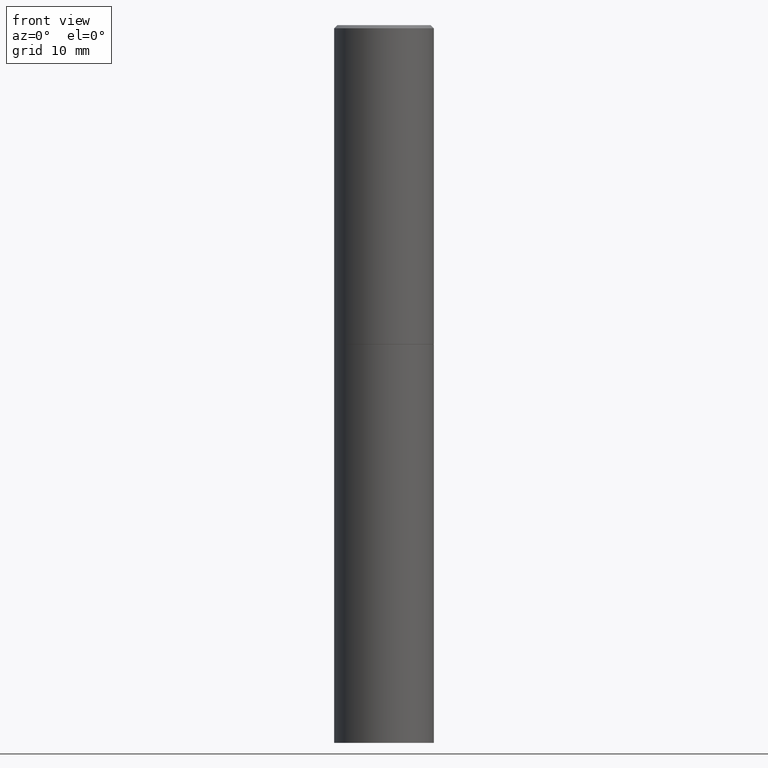
[diagram: clean part render]
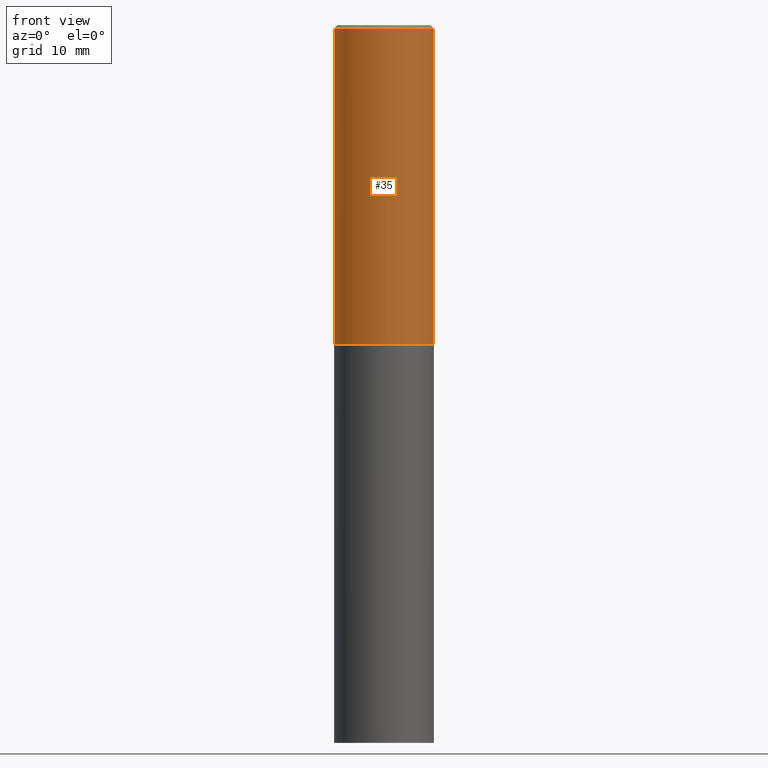
[diagram: same view with one face highlighted and labeled with its STEP entity id]
A machine part, front view. The second image highlights one B-rep face of the part: STEP entity #35.
In plain terms, the highlighted cylindrical surface (partial cylindrical patch) has radius 7.9375 mm, axis along (-0, 0, 1).
Its self-contained STEP definition (entity closure, byte-faithful):
#22 = VERTEX_POINT ( 'NONE', #190 ) ;
#25 = AXIS2_PLACEMENT_3D ( 'NONE', #159, #26, #80 ) ;
#26 = DIRECTION ( 'NONE',  ( -2.445468806185136597E-29, 3.491481338843145583E-15, 1.000000000000000000 ) ) ;
#27 = ORIENTED_EDGE ( 'NONE', *, *, #295, .T. ) ;
#29 = DIRECTION ( 'NONE',  ( 1.000000000000000000, -6.982962677686269077E-15, 0.000000000000000000 ) ) ;
#34 = CARTESIAN_POINT ( 'NONE',  ( 4.890937612370293302E-31, -6.982962677686318726E-17, -0.02000000000000008021 ) ) ;
#35 = ADVANCED_FACE ( 'NONE', ( #61 ), #312, .T. ) ;
#37 = DIRECTION ( 'NONE',  ( -2.445468806185136877E-29, 3.491481338843145188E-15, 1.000000000000000000 ) ) ;
#43 = DIRECTION ( 'NONE',  ( -2.445468806185136597E-29, 3.491481338843145583E-15, 1.000000000000000000 ) ) ;
#61 = FACE_OUTER_BOUND ( 'NONE', #143, .T. ) ;
#69 = VECTOR ( 'NONE', #37, 39.37007874015748143 ) ;
#80 = DIRECTION ( 'NONE',  ( 1.000000000000000000, -6.982962677686266711E-15, 4.876176775795935232E-29 ) ) ;
#82 = VERTEX_POINT ( 'NONE', #338 ) ;
#114 = CARTESIAN_POINT ( 'NONE',  ( 0.3124999999999998890, -2.182175836776957558E-15, 1.523805242436229235E-29 ) ) ;
#125 = CIRCLE ( 'NONE', #271, 0.3124999999999998335 ) ;
#143 = EDGE_LOOP ( 'NONE', ( #322, #27, #193, #237 ) ) ;
#151 = CARTESIAN_POINT ( 'NONE',  ( -0.3124999999999998335, 2.112346210000093866E-15, -0.02000000000000008021 ) ) ;
#154 = CARTESIAN_POINT ( 'NONE',  ( 0.3124999999999998335, -2.213735251080465334E-15, -0.02000000000000008021 ) ) ;
#159 = CARTESIAN_POINT ( 'NONE',  ( 0.000000000000000000, 0.000000000000000000, 0.000000000000000000 ) ) ;
#168 = DIRECTION ( 'NONE',  ( -2.445468806185136877E-29, 3.491481338843145188E-15, 1.000000000000000000 ) ) ;
#169 = DIRECTION ( 'NONE',  ( -2.445468806185136597E-29, 3.491481338843145583E-15, 1.000000000000000000 ) ) ;
#187 = LINE ( 'NONE', #114, #69 ) ;
#190 = CARTESIAN_POINT ( 'NONE',  ( 0.3125000000000000000, -9.161647033124407294E-15, -1.998999999999999888 ) ) ;
#192 = EDGE_CURVE ( 'NONE', #22, #331, #187, .T. ) ;
#193 = ORIENTED_EDGE ( 'NONE', *, *, #192, .T. ) ;
#194 = LINE ( 'NONE', #318, #236 ) ;
#210 = EDGE_CURVE ( 'NONE', #82, #346, #194, .T. ) ;
#236 = VECTOR ( 'NONE', #168, 39.37007874015748143 ) ;
#237 = ORIENTED_EDGE ( 'NONE', *, *, #241, .F. ) ;
#241 = EDGE_CURVE ( 'NONE', #346, #331, #125, .T. ) ;
#242 = CIRCLE ( 'NONE', #313, 0.3125000000000000000 ) ;
#271 = AXIS2_PLACEMENT_3D ( 'NONE', #34, #169, #342 ) ;
#295 = EDGE_CURVE ( 'NONE', #82, #22, #242, .T. ) ;
#312 = CYLINDRICAL_SURFACE ( 'NONE', #25, 0.3124999999999998890 ) ;
#313 = AXIS2_PLACEMENT_3D ( 'NONE', #355, #43, #29 ) ;
#318 = CARTESIAN_POINT ( 'NONE',  ( -0.3124999999999998890, 2.220446049250312292E-15, -1.537167215704657391E-29 ) ) ;
#322 = ORIENTED_EDGE ( 'NONE', *, *, #210, .F. ) ;
#331 = VERTEX_POINT ( 'NONE', #154 ) ;
#338 = CARTESIAN_POINT ( 'NONE',  ( -0.3125000000000000000, -1.304204362311840281E-15, -1.998999999999999888 ) ) ;
#342 = DIRECTION ( 'NONE',  ( 1.000000000000000000, -6.982962677686265133E-15, 0.000000000000000000 ) ) ;
#346 = VERTEX_POINT ( 'NONE', #151 ) ;
#355 = CARTESIAN_POINT ( 'NONE',  ( 4.888492143564087591E-29, -6.979471196347447369E-15, -1.998999999999999888 ) ) ;